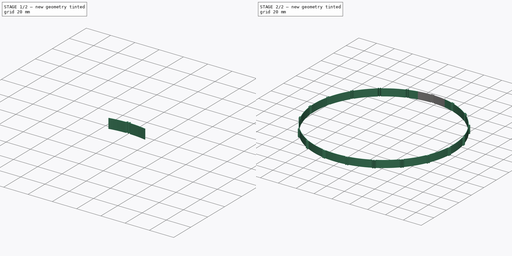
[diagram: build sequence overview — one tinted view per stage of 2, left to right]
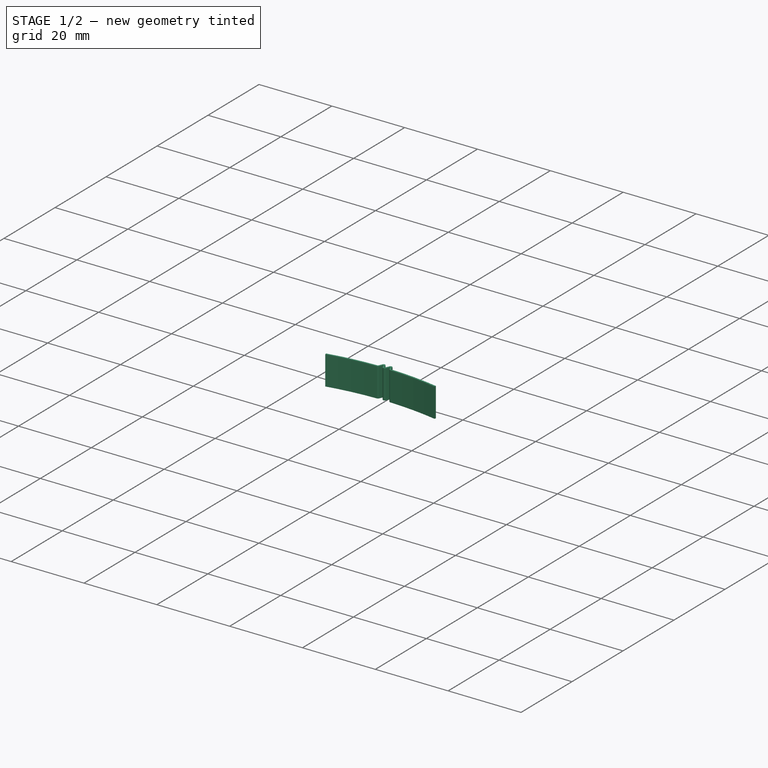
[diagram: stage 1 of 2 — iso view after this stage's code; geometry added in this stage tinted green]
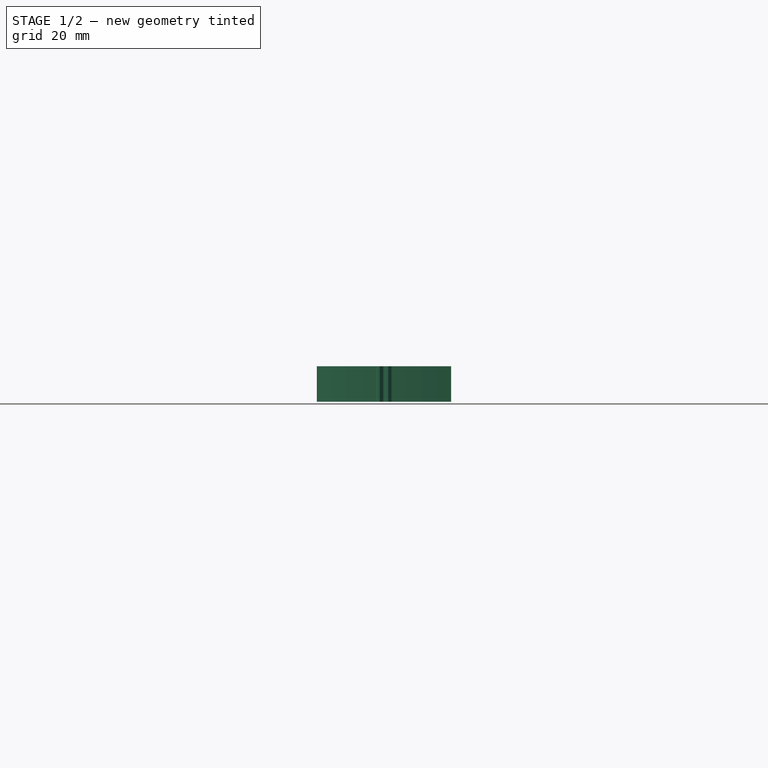
[diagram: stage 1 of 2 — front view after this stage's code; geometry added in this stage tinted green]
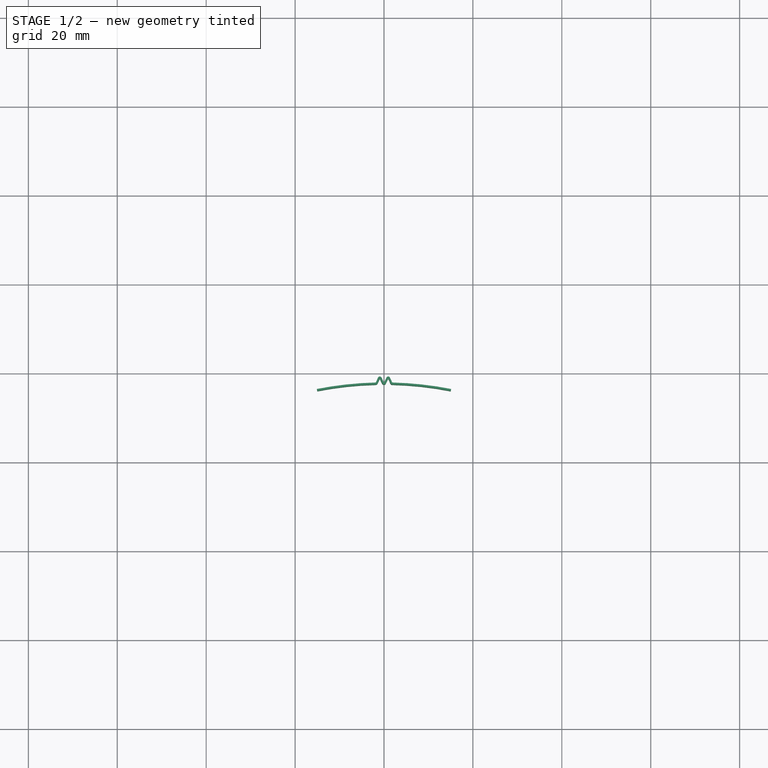
[diagram: stage 1 of 2 — top view after this stage's code; geometry added in this stage tinted green]
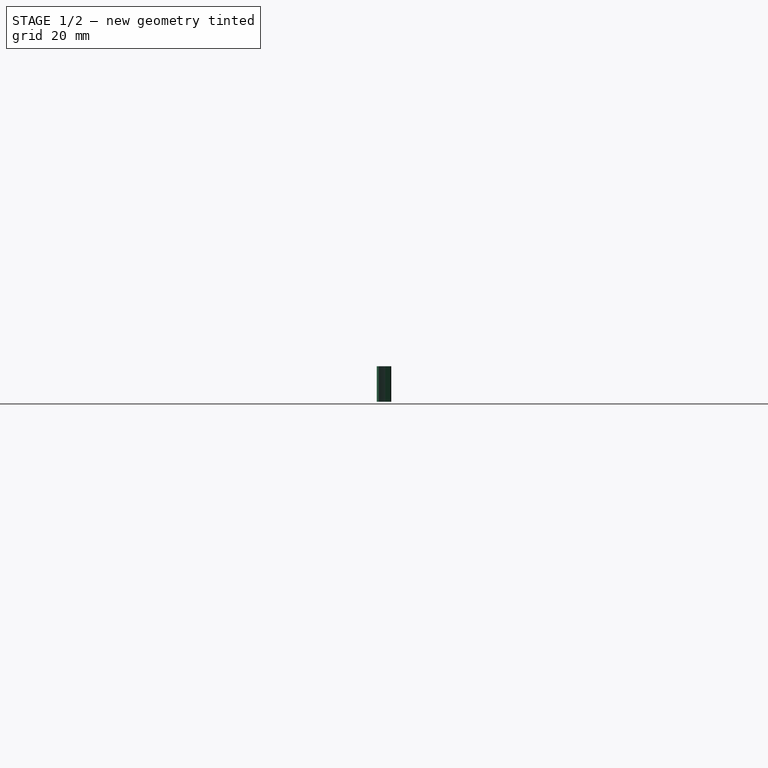
[diagram: stage 1 of 2 — right view after this stage's code; geometry added in this stage tinted green]
FCSTD DOCUMENT  (FreeCAD 0.20R28647 (Git))
Label: Hinterrad_Tire
License: All rights reserved
LicenseURL: http://en.wikipedia.org/wiki/All_rights_reserved
objects: Sketcher::SketchObject×1, PartDesign::Pad×1, PartDesign::PolarPattern×1, PartDesign::Body×1
note: 5 computed .brp shape members not serialized (recipe doc carries the construction recipe); baked Part::Feature solids carry a one-line shape summary decoded from their .brp

FEATURE [Sketcher::SketchObject] Sketch
  FullyConstrained = true
  MapMode = 5
  Support = -> [XY_Plane]
  sketch-geometry (24):
    g0: ArcOfCircle CenterX=0 CenterY=0 CenterZ=0 NormalX=0 NormalY=0 NormalZ=1 AngleXU=0 Radius=77.5 StartAngle=1.37602 EndAngle=1.54706
    g1: LineSegment StartX=-15.0871 StartY=76.476 StartZ=0 EndX=-15 EndY=76.0345 EndZ=0
    g2: LineSegment StartX=15 StartY=76.0345 StartZ=0 EndX=15.0871 EndY=76.476 EndZ=0
    g3: LineSegment StartX=-1.85 StartY=77.928 StartZ=0 EndX=-1.35594 EndY=79.0216 EndZ=0
    g4: LineSegment StartX=-0.540324 StartY=79.0314 StartZ=0 EndX=-0.0201709 EndY=77.95 EndZ=0
    g5: LineSegment StartX=0.0201709 StartY=77.95 StartZ=0 EndX=0.540324 EndY=79.0314 EndZ=0
    g6: LineSegment StartX=1.35594 StartY=79.0216 StartZ=0 EndX=1.85 EndY=77.928 EndZ=0
    g7: ArcOfCircle CenterX=0 CenterY=0 CenterZ=0 NormalX=0 NormalY=0 NormalZ=1 AngleXU=0 Radius=77.95 StartAngle=1.37602 EndAngle=1.54706
    g8: ArcOfCircle CenterX=0 CenterY=0 CenterZ=0 NormalX=0 NormalY=0 NormalZ=1 AngleXU=0 Radius=77.95 StartAngle=1.59453 EndAngle=1.76557
    g9: ArcOfCircle CenterX=-1.85 CenterY=77.928 CenterZ=0 NormalX=0 NormalY=0 NormalZ=1 AngleXU=0 Radius=0.45 StartAngle=4.73612 EndAngle=5.85885
    g10: ArcOfCircle CenterX=1.85 CenterY=77.928 CenterZ=0 NormalX=0 NormalY=0 NormalZ=1 AngleXU=0 Radius=0.45 StartAngle=3.56593 EndAngle=4.68865
    g11: ArcOfCircle CenterX=0 CenterY=0 CenterZ=0 NormalX=0 NormalY=0 NormalZ=1 AngleXU=0 Radius=77.5 StartAngle=1.59453 EndAngle=1.76557
    g12: LineSegment StartX=-1.43991 StartY=77.7428 StartZ=0 EndX=-0.945851 EndY=78.8363 EndZ=0
    g13: LineSegment StartX=-0.945851 StartY=78.8363 StartZ=0 EndX=-0.425698 EndY=77.7549 EndZ=0
    g14: LineSegment StartX=0.425698 StartY=77.7549 StartZ=0 EndX=0.945851 EndY=78.8363 EndZ=0
    g15: LineSegment StartX=0.945851 StartY=78.8363 StartZ=0 EndX=1.43991 EndY=77.7428 EndZ=0
    g16: ArcOfCircle CenterX=-0.0201709 CenterY=77.95 CenterZ=0 NormalX=0 NormalY=0 NormalZ=1 AngleXU=0 Radius=0.45 StartAngle=3.58992 EndAngle=4.71265
    g17: ArcOfCircle CenterX=0.0201709 CenterY=77.95 CenterZ=0 NormalX=0 NormalY=0 NormalZ=1 AngleXU=0 Radius=0.45 StartAngle=4.71213 EndAngle=5.83486
    g18: ArcOfCircle CenterX=0.945851 CenterY=78.8363 CenterZ=0 NormalX=0 NormalY=0 NormalZ=1 AngleXU=0 Radius=0.45 StartAngle=0.424335 EndAngle=2.69326
    g19: GeomPoint X=0.958625 Y=79.9011 Z=0
    g20: ArcOfCircle CenterX=-0.945851 CenterY=78.8363 CenterZ=0 NormalX=0 NormalY=0 NormalZ=1 AngleXU=0 Radius=0.45 StartAngle=0.448329 EndAngle=2.71726
    g21: GeomPoint X=-0.958625 Y=79.9011 Z=0
    g22: ArcOfCircle CenterX=0 CenterY=0 CenterZ=0 NormalX=0 NormalY=0 NormalZ=1 AngleXU=0 Radius=77.95 StartAngle=1.57054 EndAngle=1.57106
    g23: ArcOfCircle CenterX=0 CenterY=0 CenterZ=0 NormalX=0 NormalY=0 NormalZ=1 AngleXU=0 Radius=77.5 StartAngle=1.57054 EndAngle=1.57106
  constraints (57):
    c: Coincident(g0,g-1)
    c: Coincident(g7,g0)
    c: Coincident(g1,g8)
    c: Coincident(g1,g11)
    c: Coincident(g2,g0)
    c: Coincident(g2,g7)
    c: PointOnObject(g0,g2)
    c: PointOnObject(g0,g1)
    c: Distance(g2) = 0.45
    c: Symmetric(g11,g0,g-2)
    c: Coincident(g7,g8)
    c: Coincident(g8,g3)
    c: Coincident(g7,g6)
    c: PointOnObject(g5,g7)
    c: Radius(g0) = 77.5
    c: Coincident(g9,g3)
    c: Coincident(g10,g6)
    c: Coincident(g0,g11)
    c: Tangent(g0,g10) = 1.5708
    c: Tangent(g11,g9) = 1.5708
    c: Tangent(g9,g12) = -1.5708
    c: Coincident(g12,g13)
    c: Coincident(g14,g15)
    c: Tangent(g15,g10) = -1.5708
    c: Tangent(g13,g16) = -1.5708
    c: Tangent(g14,g17) = -1.5708
    c: Coincident(g16,g4)
    c: PointOnObject(g19,g5)
    c: PointOnObject(g19,g6)
    c: Tangent(g5,g18) = 1.5708
    c: Tangent(g6,g18) = 1.5708
    c: PointOnObject(g21,g3)
    c: PointOnObject(g21,g4)
    c: Tangent(g3,g20) = 1.5708
    c: Tangent(g4,g20) = 1.5708
    c: Coincident(g9,g11)
    c: Coincident(g12,g20)
    c: Equal(g15,g14)
    c: Coincident(g14,g18)
    c: Equal(g9,g20)
    c: Equal(g13,g12)
    c: Equal(g16,g9)
    c: Equal(g17,g10)
    c: Distance(g6) = 1.2
    c: Coincident(g22,g4)
    c: Coincident(g22,g5)
    c: Coincident(g23,g22)
    c: Tangent(g23,g16) = 1.5708
    c: Tangent(g23,g17) = 1.5708
    c: Equal(g17,g18)
    c: Coincident(g22,g0)
    c: Equal(g13,g15)
    c: Angle(g14,g15) = 0.872665
    c: Symmetric(g12,g14,g-2)
    c: Coincident(g17,g5)
    c: DistanceX(g3,g6) = 3.7
    c: DistanceX(g1,g0) = 30
FEATURE [PartDesign::Pad] Pad
  Direction = (0,0,1)
  Length = 8
  Length2 = 10
  Profile = -> Sketch
  ReferenceAxis = -> Sketch [N_Axis]
  Type = 0
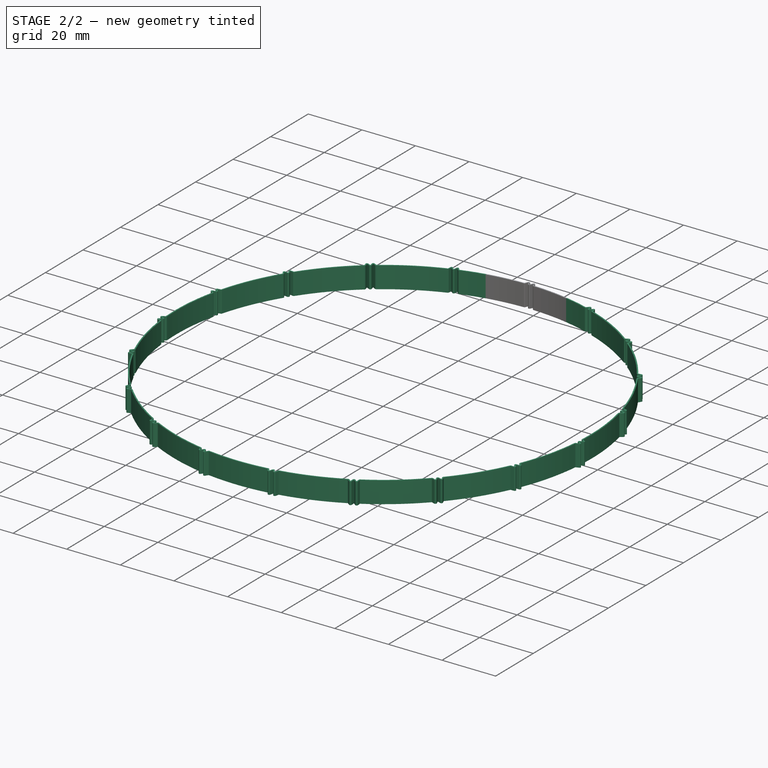
[diagram: stage 2 of 2 — iso view after this stage's code; geometry added in this stage tinted green]
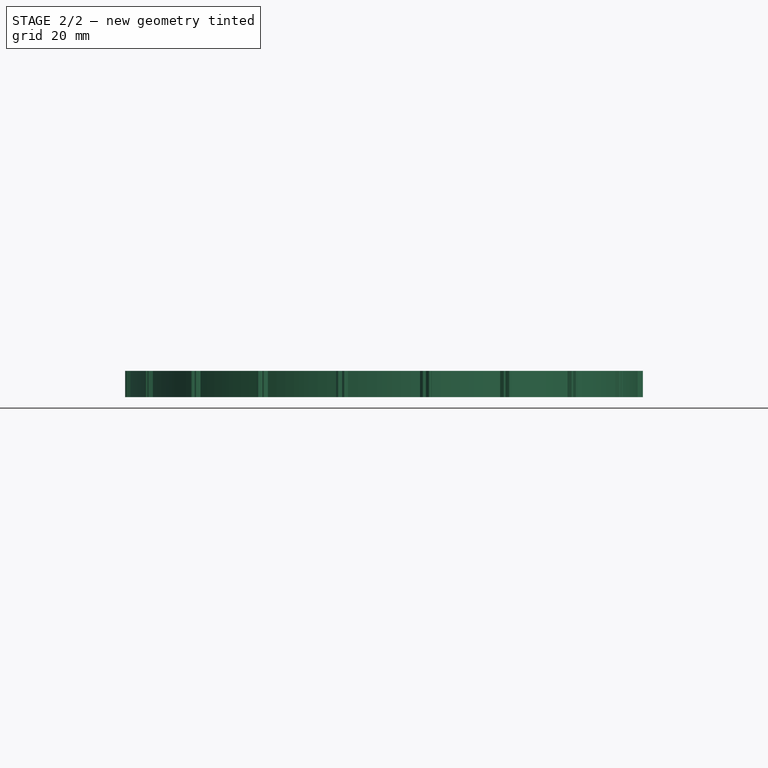
[diagram: stage 2 of 2 — front view after this stage's code; geometry added in this stage tinted green]
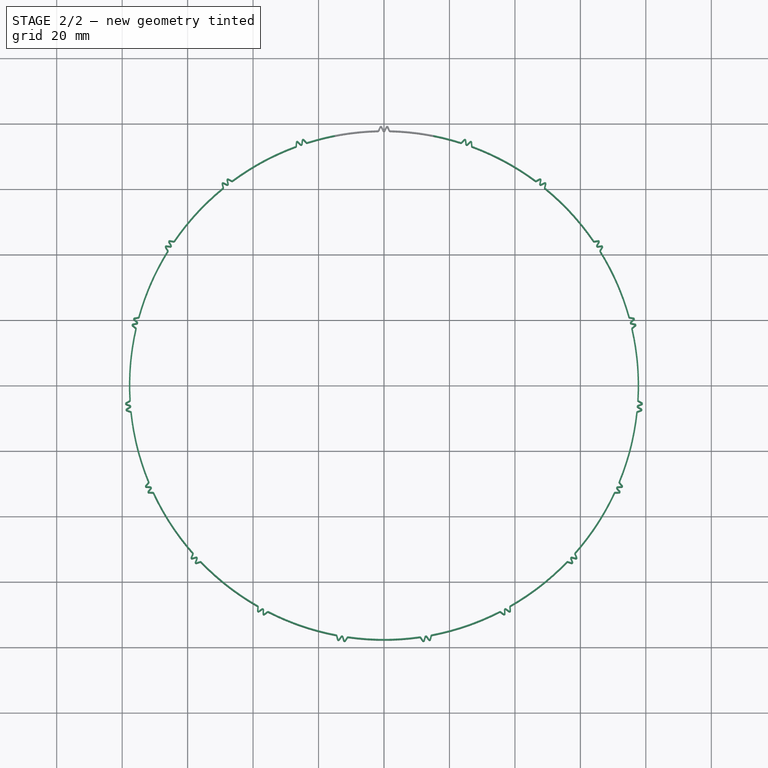
[diagram: stage 2 of 2 — top view after this stage's code; geometry added in this stage tinted green]
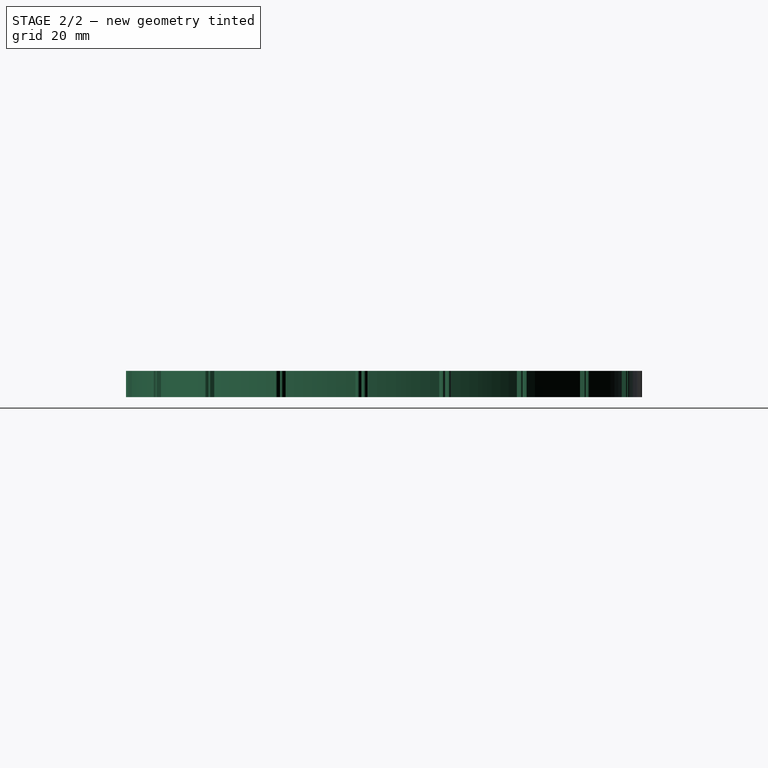
[diagram: stage 2 of 2 — right view after this stage's code; geometry added in this stage tinted green]
FEATURE [PartDesign::PolarPattern] PolarPattern
  Angle = 360
  Axis = -> Sketch [N_Axis]
  BaseFeature = -> Pad
  Occurrences = 19
  Originals = -> [Pad]
  Overlap = 0
  Refine = true
FEATURE [PartDesign::Body] Body
  Group = -> [Sketch,Pad,PolarPattern]
  Origin = -> Origin
  Tip = -> PolarPattern
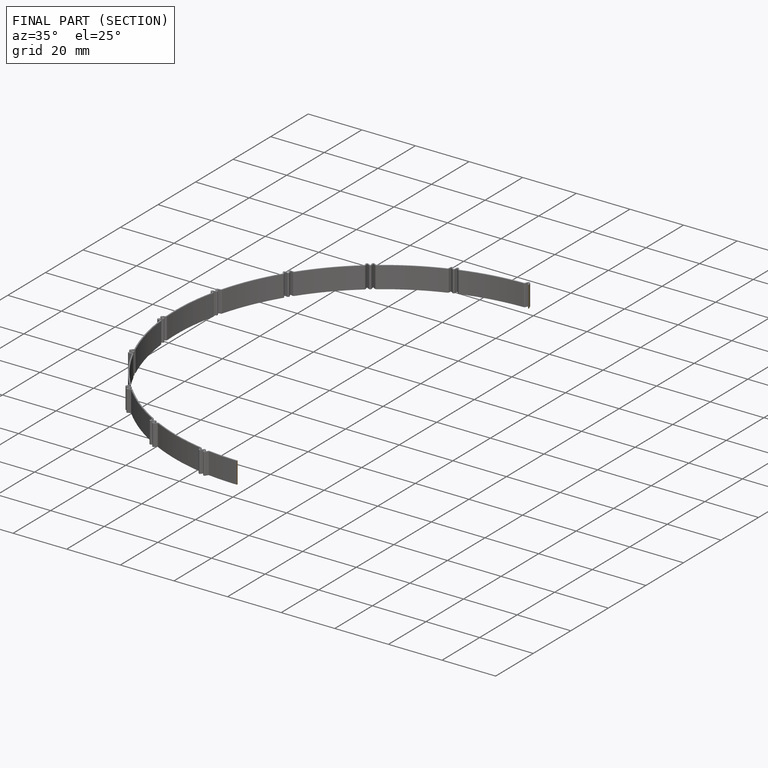
[diagram: finished part — half-section view (interior)]
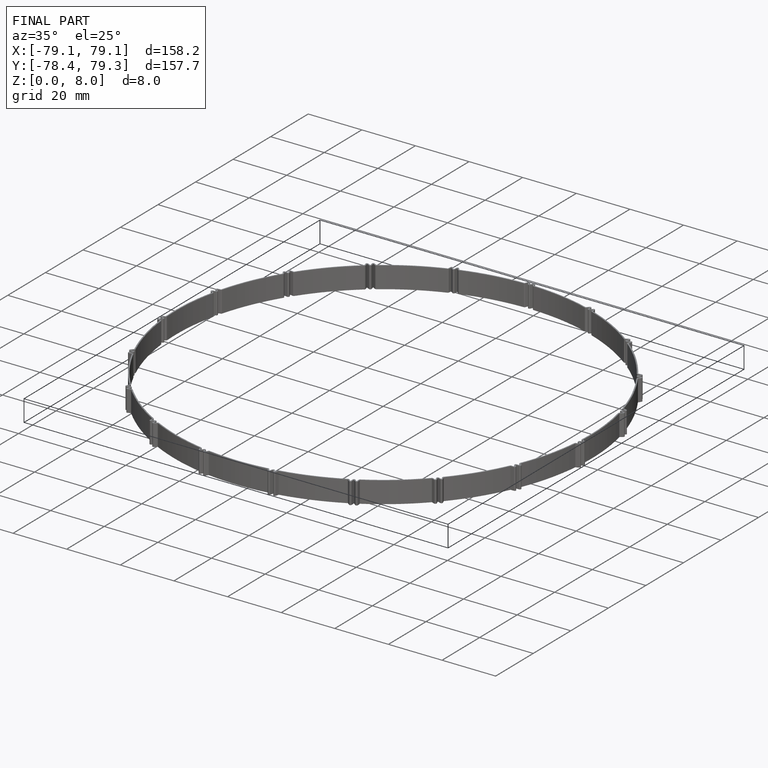
[diagram: finished part — iso view with bounding-box wireframe]
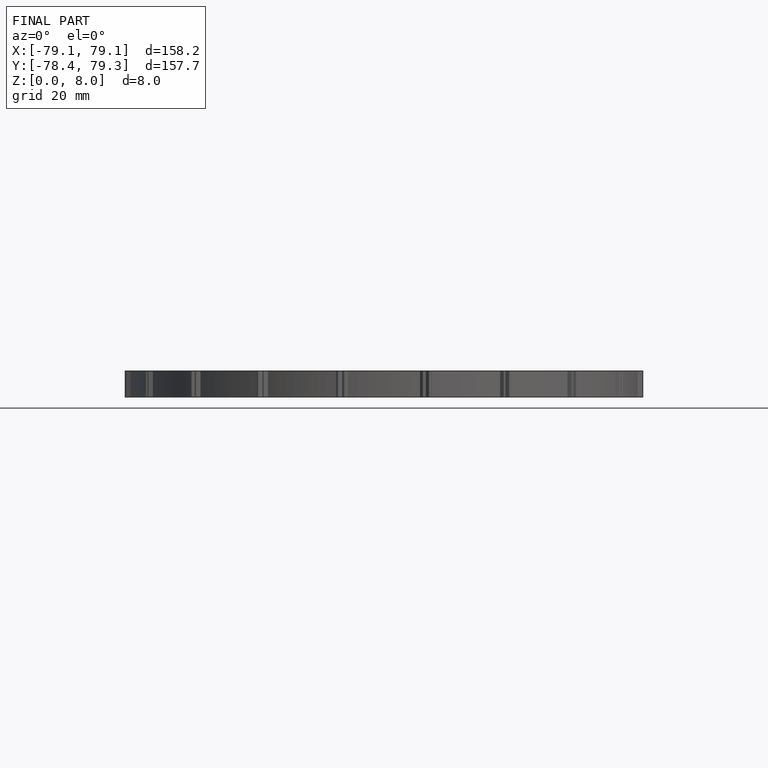
[diagram: finished part — front view with bounding-box wireframe]
